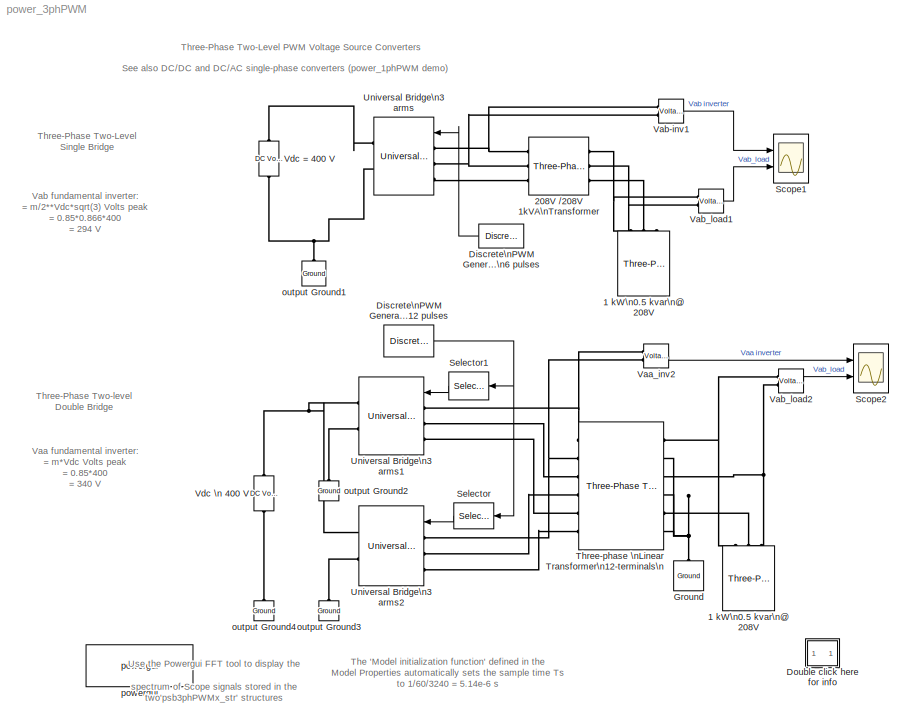
MODEL power_3phPWM
KIND model
CONFIG InitFcn = Ts=1/60/3240;
BLOCK [Reference] 1 kW\n0.5 kvar\n@ 208V  REF=powerlib/Elements/Three-Phase\nParallel RLC Load
  ActivePower = 1000
  AttributesFormatString = \\n
  CapacitivePower = 500
  Configuration = Y (grounded)
  InductivePower = 0
  LConnTagsString = A|B|C
  LeftPortType = p1
  Measurements = None
  NominalFrequency = 60
  NominalVoltage = 208
  PhysicalDomain = powersysdomain
  Ports = [0, 0, 0, 0, 0, 3]
  RightPortType = p1
  SourceBlock = powerlib/Elements/Three-Phase\nParallel RLC Load
  SourceType = Three-Phase Parallel RLC Load
  SubClassName = unknown
BLOCK [Reference] 1 kW\n0.5 kvar\n@ 208V   REF=powerlib/Elements/Three-Phase\nParallel RLC Load
  ActivePower = 1000
  AttributesFormatString = \\n
  CapacitivePower = 500
  Configuration = Y (grounded)
  InductivePower = 0
  LConnTagsString = A|B|C
  LeftPortType = p1
  Measurements = None
  NominalFrequency = 60
  NominalVoltage = 208
  PhysicalDomain = powersysdomain
  Ports = [0, 0, 0, 0, 0, 3]
  RightPortType = p1
  SourceBlock = powerlib/Elements/Three-Phase\nParallel RLC Load
  SourceType = Three-Phase Parallel RLC Load
  SubClassName = unknown
BLOCK [Reference] 208V //208V 1kVA\nTransformer  REF=powerlib/Elements/Three-Phase\nTransformer\n(Two Windings)
  AttributesFormatString = \\n
  DataFile = 'hysteresis'
  Hysteresis = off
  InitialFluxes = [ 0.8 , -0.8 , 0.7 ]
  Lm = 200
  Measurements = None
  NominalPower = [ 1000 , 60 ]
  Ports = [0, 0, 0, 0, 0, 3, 3]
  Rm = 200
  Saturation = [ 0,0  ;  0.005,1.2  ;  1.0,1.4 ]
  SetInitialFlux = off
  SetSaturation = off
  ShowPortLabels = on
  SourceBlock = powerlib/Elements/Three-Phase\nTransformer\n(Two Windings)
  SourceType = Three-Phase Transformer (Two Windings)
  TransfoNumber = 0
  Winding1 = [ 208 , 0.002 , 0.04 ]
  Winding1Connection = Delta (D1)
  Winding2 = [ 208 , 0.002 , 0.04 ]
  Winding2Connection = Yg
BLOCK [Reference] Discrete\nPWM Generator\n12 pulses  REF=powerlib_extras/Discrete \nControl Blocks/Discrete\nPWM Generator
  Fc = 1080
  Freq = 60
  GeneratorMode = Double 3-arm  bridges (12 pulses)
  Internal = on
  Phase = 0
  Ports = [0, 1]
  ShowPortLabels = on
  SourceBlock = powerlib_extras/Discrete \nControl Blocks/Discrete\nPWM Generator
  SourceType = Discrete PWM Generator
  Ts = Ts
  mIndex = 0.85
BLOCK [Reference] Discrete\nPWM Generator\n6 pulses  REF=powerlib_extras/Discrete \nControl Blocks/Discrete\nPWM Generator
  Fc = 1080
  Freq = 60
  GeneratorMode = 3-arm  bridge (6 pulses)
  Internal = on
  Phase = 0
  Ports = [0, 1]
  ShowPortLabels = on
  SourceBlock = powerlib_extras/Discrete \nControl Blocks/Discrete\nPWM Generator
  SourceType = Discrete PWM Generator
  Ts = Ts
  mIndex = 0.85
BLOCK [SubSystem] Double click here for  info
  MaskDisplay = disp('?')
  MaskIconFrame = on
  MaskIconOpaque = on
  MaskIconRotate = none
  MaskIconUnits = autoscale
  MinAlgLoopOccurrences = off
  Ports = []
  RTWSystemCode = Auto
  TreatAsAtomicUnit = off
BLOCK [Reference] Ground  REF=powerlib/Elements/Ground
  AttributesFormatString = \\n
  LConnTagsString = a
  LeftPortType = p1
  PhysicalDomain = powersysdomain
  Ports = [0, 0, 0, 0, 0, 1]
  RightPortType = p1
  SourceBlock = powerlib/Elements/Ground
  SourceType = Ground
  SubClassName = unknown
BLOCK [Scope] Scope1
  DataFormat = StructureWithTime
  LimitDataPoints = off
  MaxDataPoints = 500000
  NumInputPorts = 2
  Ports = [2]
  SaveName = psb3phPWM1_str
  SaveToWorkspace = on
  TimeRange = 0.1
  YMax = 500~500
  YMin = -500~-400
  ZoomMode = yonly
BLOCK [Scope] Scope2
  DataFormat = StructureWithTime
  LimitDataPoints = off
  MaxDataPoints = 500000
  NumInputPorts = 2
  Ports = [2]
  SaveName = psb3phPWM2_str
  SaveToWorkspace = on
  TimeRange = 0.1
  YMax = 500~400
  YMin = -500~-300
  ZoomMode = yonly
BLOCK [Selector] Selector
  Elements = 7:12
  InputPortWidth = 12
  Ports = [1, 1]
BLOCK [Selector] Selector1
  Elements = 1:6
  InputPortWidth = 12
  Ports = [1, 1]
BLOCK [Reference] Three-phase \nLinear Transformer\n12-terminals\n  REF=powerlib/Elements/Three-Phase Transformer\n12 Terminals
  AttributesFormatString = \\n
  Ports = [0, 0, 0, 0, 0, 6, 6]
  RatedPower = [ 1000 60 ]
  RmXm = [ 200 200 ]
  ShowPortLabels = on
  SourceBlock = powerlib/Elements/Three-Phase Transformer\n12 Terminals
  SourceType = Three-Phase Linear Transformer 12-Terminals
  Winding1 = [ 240  0.002  0.04 ]
  Winding2 = [ 208/sqrt(3) 0.002 0.04]
BLOCK [Reference] Universal Bridge\n3 arms  REF=powerlib/Power\nElectronics/Universal Bridge
  Arms = 3
  AttributesFormatString = \\n
  Device = IGBT / Diodes
  ForwardVoltage = .8
  ForwardVoltages = [  1  1  ]
  GTOparameters = [ 10e-6 , 20e-6 ]
  IGBTparameters = [ 1e-6 , 2e-6 ]
  Lon = 0
  Measurements = None
  Ports = [1, 0, 0, 0, 0, 3, 2]
  Ron = 1e-4
  ShowPortLabels = on
  SnubberCapacitance = inf
  SnubberResistance = 10000
  SourceBlock = powerlib/Power\nElectronics/Universal Bridge
  SourceType = Universal Bridge
BLOCK [Reference] Universal Bridge\n3 arms1  REF=powerlib/Power\nElectronics/Universal Bridge
  Arms = 3
  AttributesFormatString = \\n
  Device = IGBT / Diodes
  ForwardVoltage = .8
  ForwardVoltages = [  1  1  ]
  GTOparameters = [ 10e-6 , 20e-6 ]
  IGBTparameters = [ 1e-6 , 2e-6 ]
  Lon = 0
  Measurements = None
  Ports = [1, 0, 0, 0, 0, 3, 2]
  Ron = 1e-4
  ShowPortLabels = on
  SnubberCapacitance = inf
  SnubberResistance = 10000
  SourceBlock = powerlib/Power\nElectronics/Universal Bridge
  SourceType = Universal Bridge
BLOCK [Reference] Universal Bridge\n3 arms2  REF=powerlib/Power\nElectronics/Universal Bridge
  Arms = 3
  AttributesFormatString = \\n
  Device = IGBT / Diodes
  ForwardVoltage = .8
  ForwardVoltages = [  1  1  ]
  GTOparameters = [ 10e-6 , 20e-6 ]
  IGBTparameters = [ 1e-6 , 2e-6 ]
  Lon = 0
  Measurements = None
  Ports = [1, 0, 0, 0, 0, 3, 2]
  Ron = 1e-4
  ShowPortLabels = on
  SnubberCapacitance = inf
  SnubberResistance = 10000
  SourceBlock = powerlib/Power\nElectronics/Universal Bridge
  SourceType = Universal Bridge
BLOCK [Reference] Vaa_inv2  REF=powerlib/Measurements/Voltage Measurement
  AttributesFormatString = \\n
  OutputType = Magnitude
  PSBequivalent = 0
  PhasorSimulation = off
  Ports = [0, 1, 0, 0, 0, 2]
  ShowPortLabels = on
  SourceBlock = powerlib/Measurements/Voltage Measurement
  SourceType = Voltage Measurement
  Tag = PoWeRsYsTeMmEaSuReMeNt
BLOCK [Reference] Vab-inv1  REF=powerlib/Measurements/Voltage Measurement
  AttributesFormatString = \\n
  OutputType = Magnitude
  PSBequivalent = 0
  PhasorSimulation = off
  Ports = [0, 1, 0, 0, 0, 2]
  ShowPortLabels = on
  SourceBlock = powerlib/Measurements/Voltage Measurement
  SourceType = Voltage Measurement
  Tag = PoWeRsYsTeMmEaSuReMeNt
BLOCK [Reference] Vab_load1  REF=powerlib/Measurements/Voltage Measurement
  AttributesFormatString = \\n
  OutputType = Magnitude
  PSBequivalent = 0
  PhasorSimulation = off
  Ports = [0, 1, 0, 0, 0, 2]
  ShowPortLabels = on
  SourceBlock = powerlib/Measurements/Voltage Measurement
  SourceType = Voltage Measurement
  Tag = PoWeRsYsTeMmEaSuReMeNt
BLOCK [Reference] Vab_load2  REF=powerlib/Measurements/Voltage Measurement
  AttributesFormatString = \\n
  OutputType = Magnitude
  PSBequivalent = 0
  PhasorSimulation = off
  Ports = [0, 1, 0, 0, 0, 2]
  ShowPortLabels = on
  SourceBlock = powerlib/Measurements/Voltage Measurement
  SourceType = Voltage Measurement
  Tag = PoWeRsYsTeMmEaSuReMeNt
BLOCK [Reference] Vdc  = 400 V  REF=powerlib/Electrical\nSources/DC Voltage Source
  Amplitude = 400
  AttributesFormatString = \\n
  Description = source block
  Measurements = None
  Ports = [0, 0, 0, 0, 0, 1, 1]
  ShowPortLabels = on
  SourceBlock = powerlib/Electrical\nSources/DC Voltage Source
  SourceType = DC Voltage Source
BLOCK [Reference] Vdc \n 400 V   REF=powerlib/Electrical\nSources/DC Voltage Source
  Amplitude = 400
  AttributesFormatString = \\n
  Description = source block
  Measurements = None
  Ports = [0, 0, 0, 0, 0, 1, 1]
  ShowPortLabels = on
  SourceBlock = powerlib/Electrical\nSources/DC Voltage Source
  SourceType = DC Voltage Source
BLOCK [Reference] output Ground1  REF=powerlib/Elements/Ground
  AttributesFormatString = \\n
  LConnTagsString = a
  LeftPortType = p1
  PhysicalDomain = powersysdomain
  Ports = [0, 0, 0, 0, 0, 1]
  RightPortType = p1
  SourceBlock = powerlib/Elements/Ground
  SourceType = Ground
  SubClassName = unknown
BLOCK [Reference] output Ground2  REF=powerlib/Elements/Ground
  AttributesFormatString = \\n
  LConnTagsString = a
  LeftPortType = p1
  PhysicalDomain = powersysdomain
  Ports = [0, 0, 0, 0, 0, 1]
  RightPortType = p1
  SourceBlock = powerlib/Elements/Ground
  SourceType = Ground
  SubClassName = unknown
BLOCK [Reference] output Ground3  REF=powerlib/Elements/Ground
  AttributesFormatString = \\n
  LConnTagsString = a
  LeftPortType = p1
  PhysicalDomain = powersysdomain
  Ports = [0, 0, 0, 0, 0, 1]
  RightPortType = p1
  SourceBlock = powerlib/Elements/Ground
  SourceType = Ground
  SubClassName = unknown
BLOCK [Reference] output Ground4  REF=powerlib/Elements/Ground
  AttributesFormatString = \\n
  LConnTagsString = a
  LeftPortType = p1
  PhysicalDomain = powersysdomain
  Ports = [0, 0, 0, 0, 0, 1]
  RightPortType = p1
  SourceBlock = powerlib/Elements/Ground
  SourceType = Ground
  SubClassName = unknown
BLOCK [Reference] powergui  REF=powerlib/powergui
  DisplayStyle = off
  Frange = [0:2:500]
  FreqAxis = off
  MaxFrequency = 5000
  Ports = []
  Priority = 2
  RmsSteady = 1
  ShowPortLabels = on
  SourceBlock = powerlib/powergui
  SourceType = PSB option menu block
  StartTime = 0.1 - 2/60
  Ts = Ts
  Xlog = off
  Ylog = off
  ZoomFFT = on
  cycles = 2
  display = off
  echomessages = on
  frequency = 60
  frequencyindice = 1
  frequencyindicesteady = 1
  fundamental = 60
  methode = off
  save = off
  structure = psb3phPWM1_str
  variable = ZData
ANNOTATION (root): See also DC/DC and DC/AC single-phase converters (power_1phPWM demo)
ANNOTATION (root): The 'Model initialization function' defined in the\nModel Properties automatically sets the sample time Ts\nto 1/60/3240 = 5.14e-6 s
ANNOTATION (root): Three-Phase Two-Level PWM Voltage Source Converters
ANNOTATION (root): Three-Phase Two-Level \nSingle Bridge
ANNOTATION (root): Three-Phase Two-level \nDouble Bridge
ANNOTATION (root): Use the Powergui FFT tool to display the \nspectrum of Scope signals stored in the\ntwo'psb3phPWMx_str' structures
ANNOTATION (root): Vaa fundamental inverter: \n= m*Vdc Volts peak\n= 0.85*400 \n= 340 V
ANNOTATION (root): Vab fundamental inverter:\n= m/2**Vdc*sqrt(3) Volts peak\n= 0.85*0.866*400 \n= 294 V
ANNOTATION Double click here for  info: Circuit Description
ANNOTATION Double click here for  info: Demonstration
ANNOTATION Double click here for  info: G. Sybille and P. Giroux (Hydro-Quebec)
ANNOTATION Double click here for  info: Run the simulation and observe the following two waveforms on the Scope blocks:\nVoltage generated by the PWM inverter (trace 1), load voltage (trace 2)\n\nOnce the simulation is completed, open the Powergui and select 'FFT Analysis' to display the 0-5000 Hz frequency spectrum of signals saved \nin the two 'psb3phPWMx_str' structures. The FFT will be performed on a 2-cycle window starting at t = 0...<+957ch>
ANNOTATION Double click here for  info: The system consists of two independent circuits illustrating two three-phase two-level PWM voltage source inverters.\nEach inverter feeds an AC load (1 kW, 500 var 60Hz @ 208V rms) through a three-phase transformer.\nBoth converters are controlled in open loop with the Discrete PWM Generator block available in the Extras/Discrete Control Blocks library.\nThe two circuits use the same DC voltage (V...<+659ch>
ANNOTATION Double click here for  info: This demonstration illustrates use of the Universal Bridge and\nDiscrete PWM Pulse Generator blocks. It also demonstrates \nharmonic analysis of PWM waveforms using the Powergui/FFT tool.
NET Discrete\nPWM Generator\n12 pulses:1 -> Selector1:1, Selector:1
LINE Discrete\nPWM Generator\n6 pulses:1 -> Universal Bridge\n3 arms:1
LINE Selector1:1 -> Universal Bridge\n3 arms1:1
LINE Selector:1 -> Universal Bridge\n3 arms2:1
LINE Vaa_inv2:1 -> Scope2:1
LINE Vab-inv1:1 -> Scope1:1
LINE Vab_load1:1 -> Scope1:2
LINE Vab_load2:1 -> Scope2:2
PNET net1: 1 kW\n0.5 kvar\n@ 208V :LConn1 -- Three-phase \nLinear Transformer\n12-terminals\n:RConn1 -- Vab_load2:LConn1
PNET net2: 1 kW\n0.5 kvar\n@ 208V :LConn2 -- Three-phase \nLinear Transformer\n12-terminals\n:RConn3 -- Vab_load2:LConn2
PLINE 1 kW\n0.5 kvar\n@ 208V :LConn3 -- Three-phase \nLinear Transformer\n12-terminals\n:RConn5
PNET net3: 1 kW\n0.5 kvar\n@ 208V:LConn1 -- 208V //208V 1kVA\nTransformer:RConn1 -- Vab_load1:LConn1
PNET net4: 1 kW\n0.5 kvar\n@ 208V:LConn2 -- 208V //208V 1kVA\nTransformer:RConn2 -- Vab_load1:LConn2
PLINE 1 kW\n0.5 kvar\n@ 208V:LConn3 -- 208V //208V 1kVA\nTransformer:RConn3
PNET net5: 208V //208V 1kVA\nTransformer:LConn1 -- Universal Bridge\n3 arms:LConn1 -- Vab-inv1:LConn1
PNET net6: 208V //208V 1kVA\nTransformer:LConn2 -- Universal Bridge\n3 arms:LConn2 -- Vab-inv1:LConn2
PLINE 208V //208V 1kVA\nTransformer:LConn3 -- Universal Bridge\n3 arms:LConn3
PNET net7: Ground:LConn1 -- Three-phase \nLinear Transformer\n12-terminals\n:RConn2 -- Three-phase \nLinear Transformer\n12-terminals\n:RConn4 -- Three-phase \nLinear Transformer\n12-terminals\n:RConn6
PNET net8: Three-phase \nLinear Transformer\n12-terminals\n:LConn1 -- Universal Bridge\n3 arms1:LConn1 -- Vaa_inv2:LConn1
PNET net9: Three-phase \nLinear Transformer\n12-terminals\n:LConn2 -- Universal Bridge\n3 arms2:LConn1 -- Vaa_inv2:LConn2
PLINE Three-phase \nLinear Transformer\n12-terminals\n:LConn3 -- Universal Bridge\n3 arms1:LConn2
PLINE Three-phase \nLinear Transformer\n12-terminals\n:LConn4 -- Universal Bridge\n3 arms2:LConn2
PLINE Three-phase \nLinear Transformer\n12-terminals\n:LConn5 -- Universal Bridge\n3 arms1:LConn3
PLINE Three-phase \nLinear Transformer\n12-terminals\n:LConn6 -- Universal Bridge\n3 arms2:LConn3
PNET net10: Universal Bridge\n3 arms1:RConn1 -- Universal Bridge\n3 arms2:RConn1 -- Vdc \n 400 V :RConn1
PLINE Universal Bridge\n3 arms1:RConn2 -- output Ground2:LConn1
PLINE Universal Bridge\n3 arms2:RConn2 -- output Ground3:LConn1
PLINE Universal Bridge\n3 arms:RConn1 -- Vdc  = 400 V:RConn1
PNET net11: Universal Bridge\n3 arms:RConn2 -- Vdc  = 400 V:LConn1 -- output Ground1:LConn1
PLINE Vdc \n 400 V :LConn1 -- output Ground4:LConn1
note: NET lines group one-source signal fan-out (src -> all destinations, sorted); 1:1 wires keep LINE; PNET lines group multi-terminal physical nets as a canonical sorted terminal list (undirected conserving connections); 2-terminal nets keep the pairwise PLINE form
